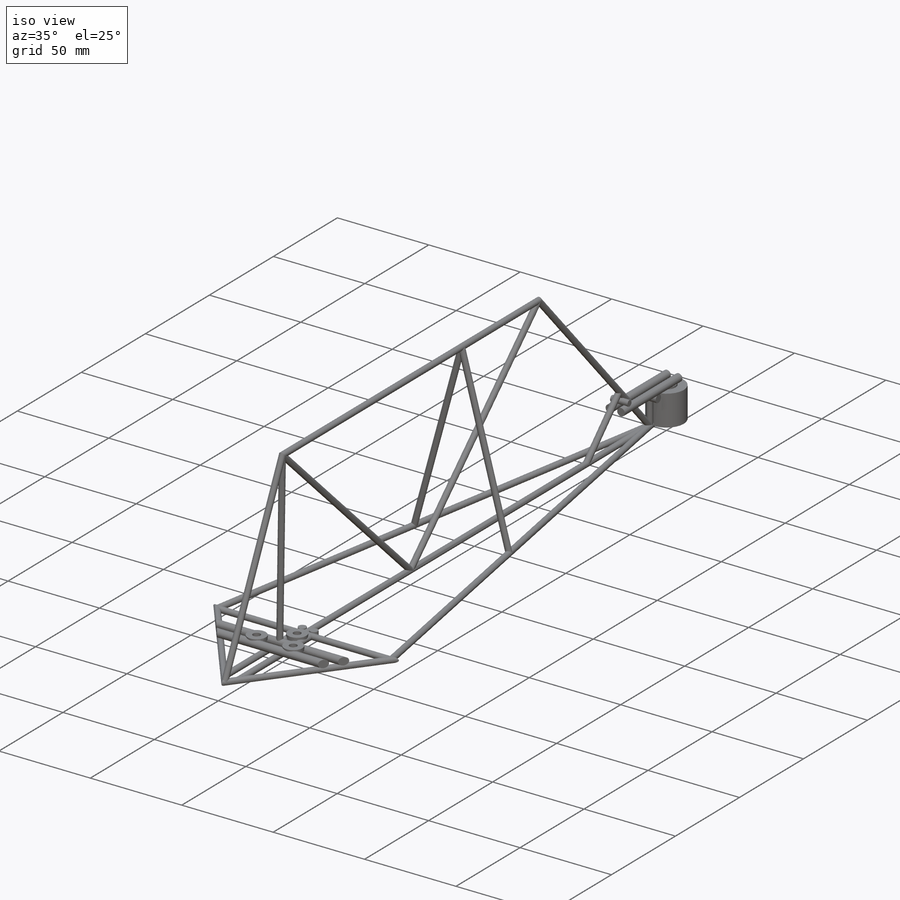
[diagram: iso view]
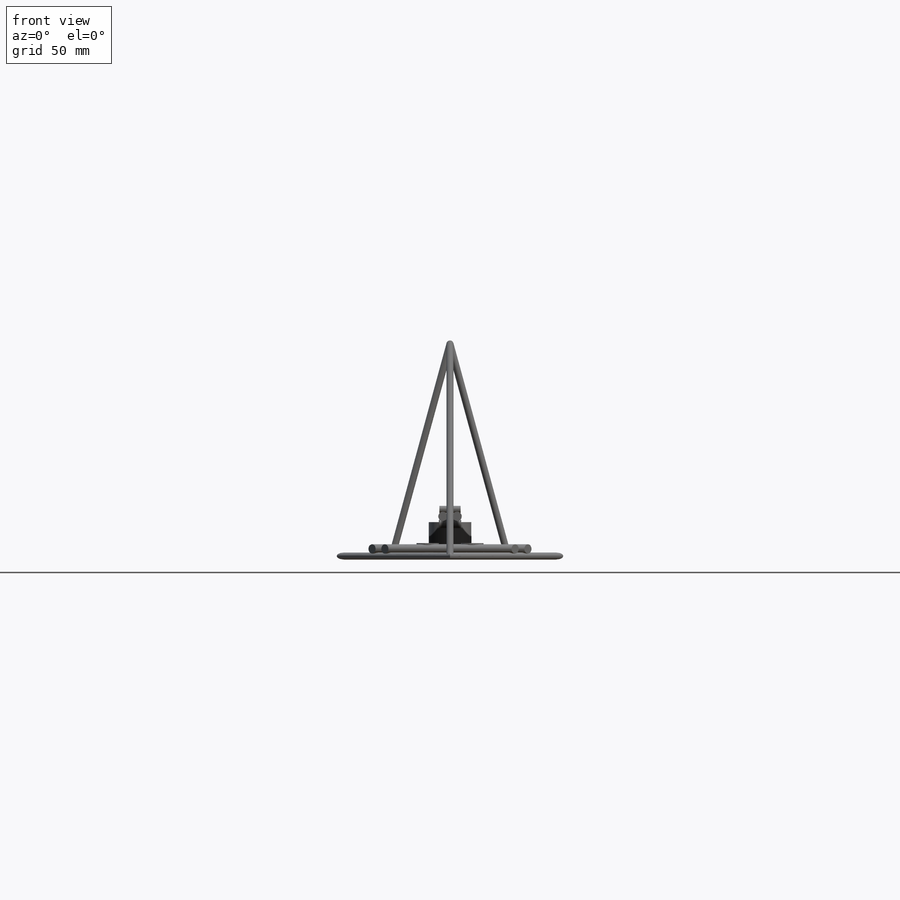
[diagram: front view]
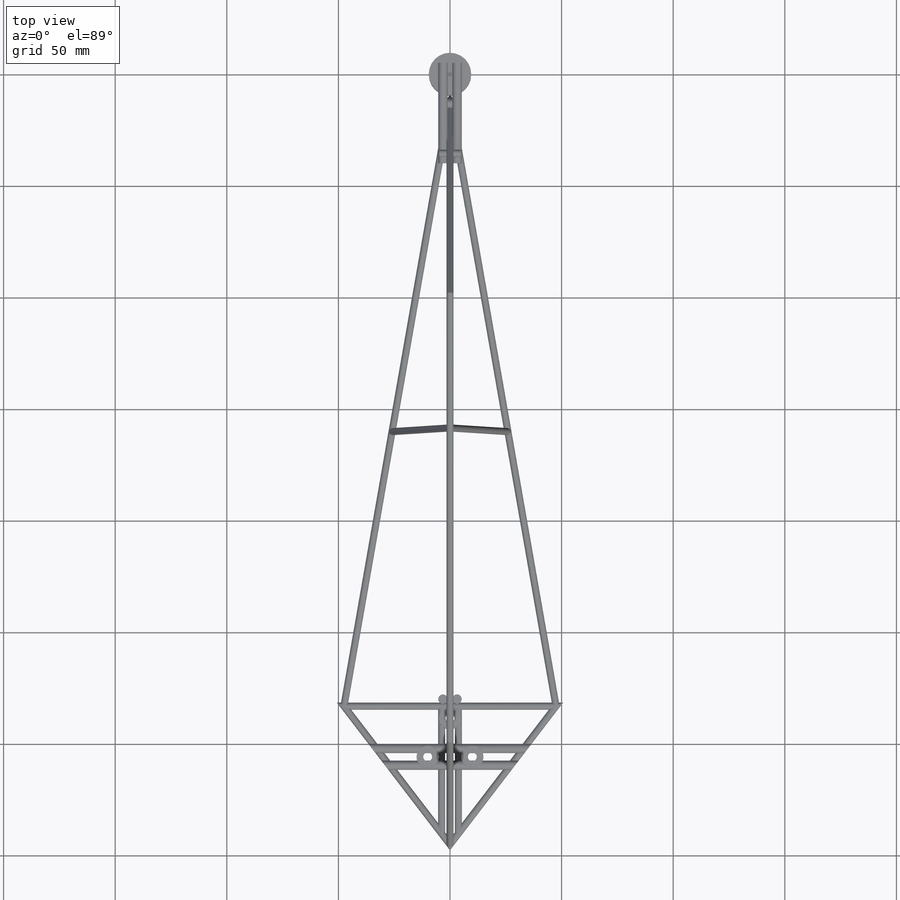
[diagram: top view]
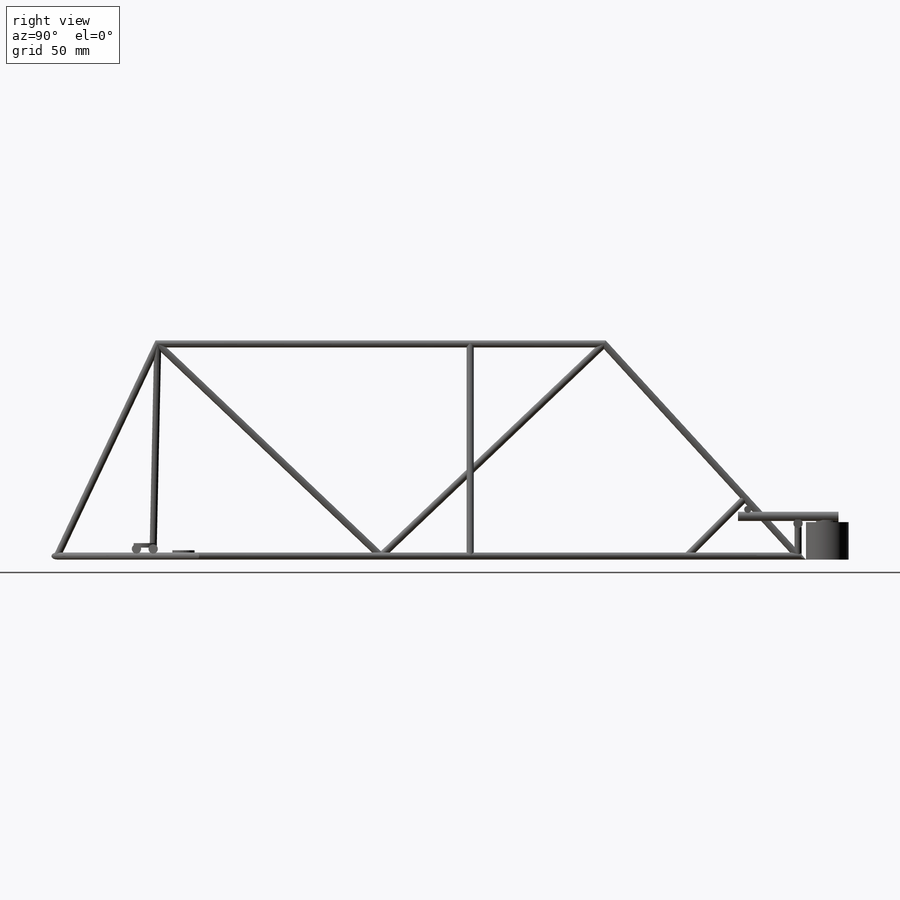
[diagram: right view]
SOLIDWORKS PART (.sldprt)
format: sldprt  version: not decoded by parser v0  size: 736,256 bytes
history: native  units: mm
features: sketch x33, extrude x14, plane x11, sweep x6, revolve x2, material x1, cut_extrude x1, mirror x1 (+16 scaffold rows collapsed)
feature tree (85):
  scaffold x16  (default folders/planes/origin — collapsed)
  material  "Brass"
  plane  "Motor Mouting Plane"  Offset=1.5875mm
  plane  "Plane5"  Offset=133mm
  plane  "Washer Bottom Plane"  Offset=4.7625mm
  plane  "Washer Bottom Plane 2"  Offset=1.5875mm
  sketch  "Sketch1"  dims[D2=10.0mm D3=~3.96875mm D1=20.0mm D4=300.0mm]
  extrude  "Motor mouting washers"  Depth=1mm
  sketch  "Sketch2"  dims[c1.D1=150.0mm c1.D2=45.0mm c1.D3=150.0mm c1.D4=13.1125mm c1.D5=95.0mm c1.D6=100.0mm c1.D7=200.0mm c2.D1=133.0mm c2.D2=195.0mm c2.D6=50.0mm]
  sketch  "Sketch7"  dims[D1=3.175mm]
  sketch  "Sketch19"  dims[D1=195.0mm D2=95.0mm D3=133.0mm]
  sketch  "Sketch37"
  extrude  "Motor mounting washer 2"  Depth=1mm
  sketch  "Sketch20"  dims[D1=3.175mm]
  sweep  "Moter Mount 1"
  sketch  "Sketch21"  dims[c1.D1=3.175mm c1.D3=3.175mm c1.D5=3.175mm c1.D2=3.175mm c2.D3=152.0mm c2.D4=7.5mm c3.D3=0.5mm]
  extrude  "Motor Mount 2"  Depth=40mm
  sketch  "Sketch40"
  cut_extrude  "Triming mounts"  [1 undecoded]
  sketch  "Sketch34"  dims[D1=3.175mm D2=7.5mm]
  extrude  "Motor Mount 3"  [1 undecoded]
  sketch  "Sketch36"
  extrude  "Motor Mount 3 - 2"  [1 undecoded]
  sweep  "Main outline"
  sketch  "Sketch26"  dims[D1=50.0mm]
  sketch  "Constraint Guid"
  plane  "Constraint Plane"
  sketch  "Sketch43"  dims[D1=3.175mm]
  extrude  "Constraint feature"  [1 undecoded]
  sketch  "Sketch38"  dims[c1.D1=3.175mm c1.D3=~4.469839mm c1.D2=6.35mm c2.D3=0.5mm]
  extrude  "Critical Joint Support"  Depth=1.5875mm
  plane  "Horizontal 1 Profile"
  sketch  "Sketch27"  dims[D1=3.175mm]
  sweep  "Horizontal 1"
  sketch  "Sketch28"  dims[D1=50.0mm]
  sketch  "Sketch32"  dims[D1=3.175mm]
  extrude  "Horizontal 2 - 1"  [1 undecoded]
  plane  "Horizontal 2 Profile"
  sketch  "Sketch30"  dims[D1=3.175mm]
  sweep  "Horizontal 2 - 2"
  mirror  "Opisite Horizontal"
  sketch  "Diagonals"  dims[D1=50.0mm]
  plane  "Diagonals Plane 1"
  plane  "Diagonals Plane 2"
  sketch  "Sketch22"  dims[D1=3.175mm]
  extrude  "Diagonal 1"  [1 undecoded]
  sketch  "Sketch24"  dims[D1=3.175mm]
  extrude  "Diagonal 2"  [1 undecoded]
  plane  "Supports Plane"  Offset=10mm
  sketch  "Supports Intersection"
  sketch  "Sketch33"  dims[D1=1.5875mm D2=~3.166108mm]
  revolve  "Support"  Angle=360deg
  sketch  "Second Support"
  sketch  "Sketch31"
  extrude  "FOR SIMULATION"  Depth=10mm
  sketch  "Sketch11"  dims[D2=19.05mm D1=150.0mm]
  extrude  "Electro Magnet"  Depth=16.764mm
  sketch  "Sketch12"  dims[c1.D1=10.0mm c1.D2=~3.96875mm c1.D3=~3.96875mm c2.D2=~22.159121mm]
  extrude  "Maget Washer"  Depth=1mm
  sketch  "Sketch14"  dims[c1.D1=1.5875mm c1.D2=~13.262227mm c2.D2=45.0deg c3.D2=45.0mm]
  plane  "End of washer"
  sketch  "Sketch15"  dims[c1.D1=3.175mm c1.D3=~4.809184mm c1.D4=~4.262115mm c2.D1=~11.740508mm c2.D2=3.175mm c2.D3=0.5mm c2.D4=0.5mm]
  sweep  "Washer Mount 1"
  sketch  "Sketch16"  dims[D1=3.175mm]
  sketch  "Sketch17"  dims[D1=3.175mm]
  sweep  "Washer Mount 2"
  sketch  "Sketch18"  dims[D1=3.175mm D3=~2.149429mm D2=0.5mm]
  extrude  "Washer Mount 3"  Depth=4.7625mm
  sketch  "Sketch39"  dims[c1.D1=1.5875mm c1.D2=~24.22287mm c2.D2=45.0deg]
  revolve  "Front end brace"  Angle=360deg
decode coverage: 36 of 57 modeling features carry decoded parameters
note: ~ marks probable driven/reference dimensions
note: 7 parameter values undecoded
summary: no parameter record found for 7 features; profile_refs inferred from adjacent sketches, not decoded
note: suppression state not decoded; provenance and decode notes live in map.json
